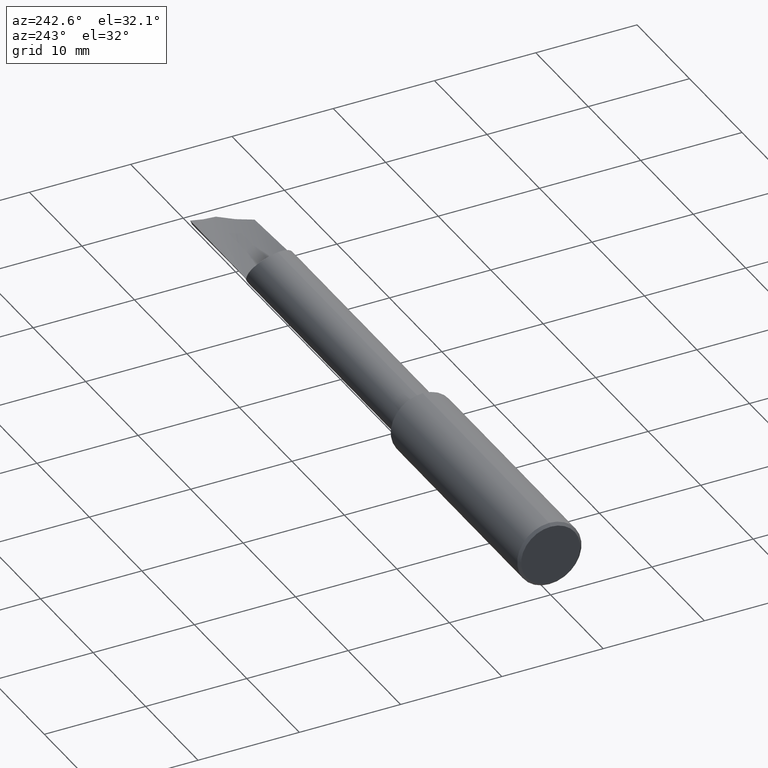
[diagram: clean part render]
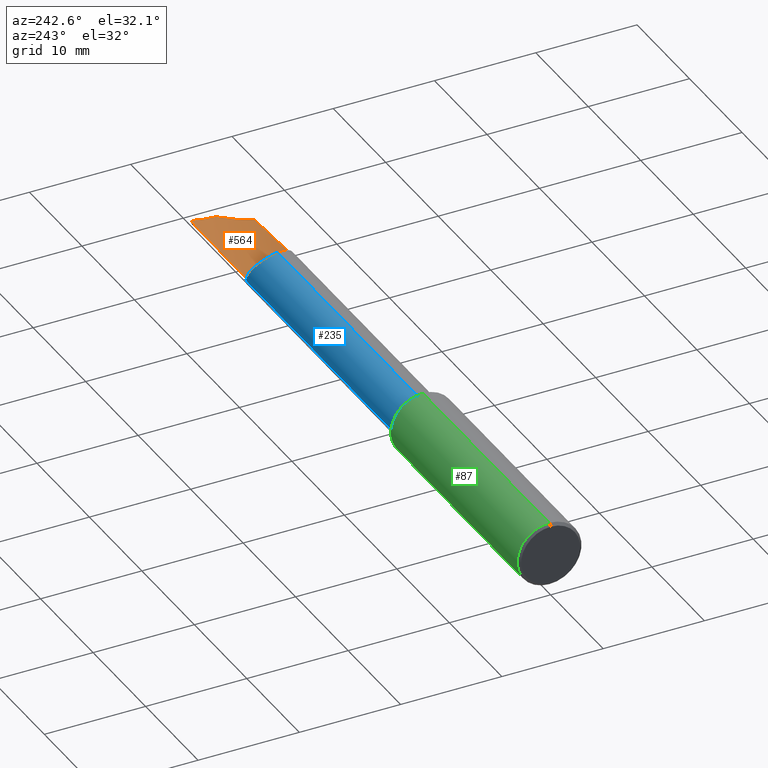
[diagram: same view with three faces highlighted in distinct colors, each labeled with its STEP entity id]
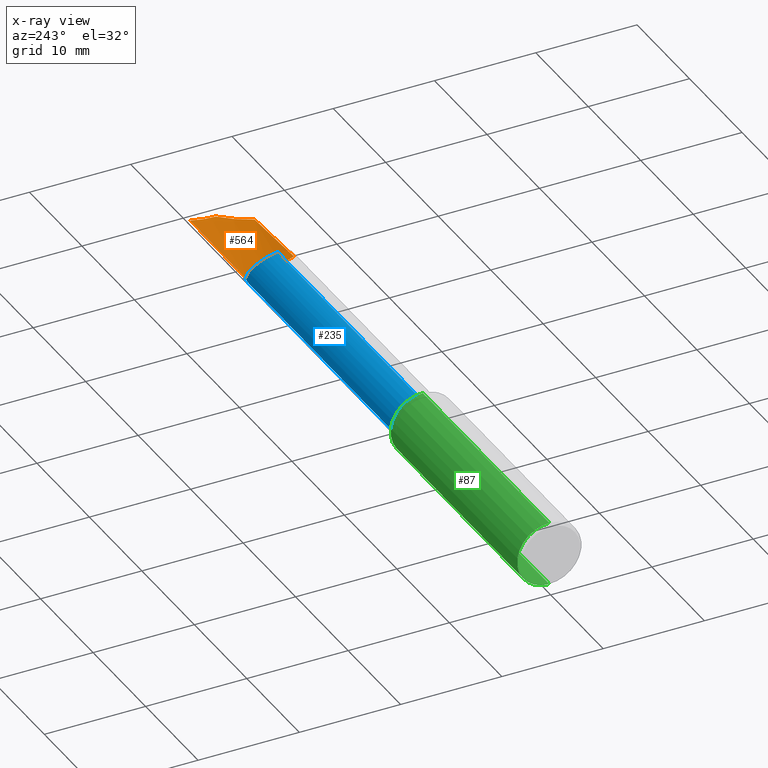
[diagram: x-ray of the same camera — body ghosted, the three highlighted faces saturated]
A machine part, auxiliary view with three faces highlighted in distinct colors.
The next image is the same camera in x-ray (body ghosted, the three faces saturated) — at least one of them is partly hidden behind the body in this view.
Their STEP definitions:

[orange] entity #564 — the highlighted face is a freeform B-spline surface patch.
#42 = CARTESIAN_POINT ( 'NONE',  ( 2.500000000000000000, 0.1748499999999998666, 0.02036606132864511934 ) ) ;
#52 = CARTESIAN_POINT ( 'NONE',  ( 2.500000000000000000, 0.1052499999999999686, 0.000000000000000000 ) ) ;
#54 = VERTEX_POINT ( 'NONE', #687 ) ;
#58 = EDGE_CURVE ( 'NONE', #183, #342, #763, .T. ) ;
#60 = CARTESIAN_POINT ( 'NONE',  ( 2.246698480951583754, 0.09595842451396570383, -0.01731511377960634826 ) ) ;
#63 =( BOUNDED_CURVE ( )  B_SPLINE_CURVE ( 3, ( #698, #520, #208, #743 ),
 .UNSPECIFIED., .F., .F. ) 
 B_SPLINE_CURVE_WITH_KNOTS ( ( 4, 4 ),
 ( 0.005175778614820833803, 0.005191721417056123847 ),
 .UNSPECIFIED. ) 
 CURVE ( )  GEOMETRIC_REPRESENTATION_ITEM ( )  RATIONAL_B_SPLINE_CURVE ( ( 0.9740275819911479172, 0.9740656182505580407, 0.9741037836849223419, 0.9741420782942408207 ) ) 
 REPRESENTATION_ITEM ( '' )  );
#73 = CARTESIAN_POINT ( 'NONE',  ( 2.115831856367702546, 0.08921906441239113583, -0.02441856689959865864 ) ) ;
#74 = B_SPLINE_CURVE_WITH_KNOTS ( 'NONE', 3,
 ( #215, #446, #733, #621 ),
 .UNSPECIFIED., .F., .F.,
 ( 4, 4 ),
 ( 7.967431483338822441E-05, 0.003654915943233843362 ),
 .UNSPECIFIED. ) ;
#83 = CARTESIAN_POINT ( 'NONE',  ( 2.101985182368761418, -0.06232069977107370512, 0.007196703789060768588 ) ) ;
#94 = CARTESIAN_POINT ( 'NONE',  ( 1.812666666666668203, 0.1692320603815770930, -0.05466611626099807802 ) ) ;
#102 = FACE_OUTER_BOUND ( 'NONE', #476, .T. ) ;
#113 = CARTESIAN_POINT ( 'NONE',  ( 2.500000000000000000, 0.1052499999999999686, 0.000000000000000000 ) ) ;
#128 = CARTESIAN_POINT ( 'NONE',  ( 2.111665809954994089, 0.08915496014083668097, -0.02465041748704996025 ) ) ;
#135 = ORIENTED_EDGE ( 'NONE', *, *, #670, .F. ) ;
#146 = ORIENTED_EDGE ( 'NONE', *, *, #58, .T. ) ;
#151 = CARTESIAN_POINT ( 'NONE',  ( 2.500000000000000444, 0.06084440686735265169, -0.02218851683438133673 ) ) ;
#154 = CARTESIAN_POINT ( 'NONE',  ( 2.107791904823271611, 0.02744776930478221716, -0.01842625771583338706 ) ) ;
#183 = VERTEX_POINT ( 'NONE', #771 ) ;
#184 = EDGE_CURVE ( 'NONE', #516, #363, #248, .T. ) ;
#195 = EDGE_CURVE ( 'NONE', #516, #54, #599, .T. ) ;
#208 = CARTESIAN_POINT ( 'NONE',  ( 2.120000000000000551, 0.08970010041975085002, -0.02420745754555480439 ) ) ;
#215 = CARTESIAN_POINT ( 'NONE',  ( 2.497767342160548854, 0.006563304598762005095, -0.01116899279488216441 ) ) ;
#217 = CARTESIAN_POINT ( 'NONE',  ( 2.270888888888889845, 0.05765417977062659016, -0.03093662185290534800 ) ) ;
#221 = CARTESIAN_POINT ( 'NONE',  ( 2.270888888888888957, -0.1719218024467703554, 0.04550569603366619309 ) ) ;
#223 = CARTESIAN_POINT ( 'NONE',  ( 2.041777777777778358, -0.06463100845323596633, -0.004147875681276347488 ) ) ;
#248 = B_SPLINE_CURVE_WITH_KNOTS ( 'NONE', 3,
 ( #113, #716, #60, #304 ),
 .UNSPECIFIED., .F., .F.,
 ( 4, 4 ),
 ( 2.686746494871500227E-21, 0.009679675726453004087 ),
 .UNSPECIFIED. ) ;
#278 = VERTEX_POINT ( 'NONE', #433 ) ;
#288 = CARTESIAN_POINT ( 'NONE',  ( 2.041777777777778802, -0.1620295639055862602, 0.06880203030876089199 ) ) ;
#304 = CARTESIAN_POINT ( 'NONE',  ( 2.120000000000000107, 0.08990917335082526662, -0.02421779605015241671 ) ) ;
#308 = EDGE_CURVE ( 'NONE', #54, #278, #74, .T. ) ;
#318 = ORIENTED_EDGE ( 'NONE', *, *, #367, .F. ) ;
#326 = CARTESIAN_POINT ( 'NONE',  ( 2.099985204774059699, -0.09024474448373197288, 0.02030113526544596175 ) ) ;
#340 = CARTESIAN_POINT ( 'NONE',  ( 2.500000000000000000, 0.1052499999999999686, 0.000000000000000000 ) ) ;
#341 = CARTESIAN_POINT ( 'NONE',  ( 2.120000000000000107, 0.08928196195395607382, -0.02418638603949730542 ) ) ;
#342 = VERTEX_POINT ( 'NONE', #394 ) ;
#346 = VERTEX_POINT ( 'NONE', #341 ) ;
#350 = CARTESIAN_POINT ( 'NONE',  ( 1.812666666666668203, -0.1521373253644021650, 0.09209836458385559088 ) ) ;
#354 = CARTESIAN_POINT ( 'NONE',  ( 1.812666666666668869, 0.04660292681476783244, -0.04592653077460544936 ) ) ;
#361 = CARTESIAN_POINT ( 'NONE',  ( 2.498105852030231944, 0.03982996995073791180, -0.01077648217461519772 ) ) ;
#363 = VERTEX_POINT ( 'NONE', #509 ) ;
#367 = EDGE_CURVE ( 'NONE', #346, #363, #63, .T. ) ;
#387 = CARTESIAN_POINT ( 'NONE',  ( 2.103920395128665799, -0.03289320846274075560, -0.003308102619573082773 ) ) ;
#394 = CARTESIAN_POINT ( 'NONE',  ( 2.099985204774059699, -0.09024474448373197288, 0.02030113526544596175 ) ) ;
#400 = ORIENTED_EDGE ( 'NONE', *, *, #184, .T. ) ;
#402 = CARTESIAN_POINT ( 'NONE',  ( 1.583555555555557381, 0.03918955435071098253, -0.05156113804157395203 ) ) ;
#414 = CARTESIAN_POINT ( 'NONE',  ( 2.500000000000000000, -0.1748499999999999499, 0.02036606132864511934 ) ) ;
#433 = CARTESIAN_POINT ( 'NONE',  ( 2.398761991375082836, -0.09244204618670309737, 0.003273850457099852784 ) ) ;
#444 = CARTESIAN_POINT ( 'NONE',  ( 2.120000000000000107, 0.08928196195395607382, -0.02418638603949730542 ) ) ;
#446 = CARTESIAN_POINT ( 'NONE',  ( 2.464380513559167429, -0.02682352400261905565, -0.01169628508488581263 ) ) ;
#463 = CARTESIAN_POINT ( 'NONE',  ( 2.111665809954994089, 0.08915496014083668097, -0.02465041748704996025 ) ) ;
#475 = CARTESIAN_POINT ( 'NONE',  ( 1.812666666666668869, -0.06522738294239313617, 0.005144660453304620955 ) ) ;
#476 = EDGE_LOOP ( 'NONE', ( #613, #400, #318, #608, #146, #135, #754 ) ) ;
#480 = CARTESIAN_POINT ( 'NONE',  ( 2.498847675109613586, 0.07274798056255332712, -0.007074594563097092413 ) ) ;
#509 = CARTESIAN_POINT ( 'NONE',  ( 2.120000000000000107, 0.08990917335082526662, -0.02421779605015241671 ) ) ;
#513 = CARTESIAN_POINT ( 'NONE',  ( 1.583555555555557826, 0.1581039042606014744, -0.07739802588953197116 ) ) ;
#516 = VERTEX_POINT ( 'NONE', #340 ) ;
#520 = CARTESIAN_POINT ( 'NONE',  ( 2.120000000000000551, 0.08949102992630660058, -0.02419698754576702499 ) ) ;
#521 =( BOUNDED_CURVE ( )  B_SPLINE_CURVE ( 2, ( #128, #73, #444 ),
 .UNSPECIFIED., .F., .F. ) 
 B_SPLINE_CURVE_WITH_KNOTS ( ( 3, 3 ),
 ( 0.5767193966733731303, 0.5858306181482758612 ),
 .UNSPECIFIED. ) 
 CURVE ( )  GEOMETRIC_REPRESENTATION_ITEM ( )  RATIONAL_B_SPLINE_CURVE ( ( 0.9742721459605733214, 0.9741465623362282056, 0.9740275819911484723 ) ) 
 REPRESENTATION_ITEM ( '' )  );
#525 = CARTESIAN_POINT ( 'NONE',  ( 2.500000000000000444, -0.06084440686735272802, -0.02218851683438132980 ) ) ;
#564 = ADVANCED_FACE ( 'NONE', ( #102 ), #682, .T. ) ;
#588 = CARTESIAN_POINT ( 'NONE',  ( 2.041777777777778358, 0.05212855329269719395, -0.03843157631375539868 ) ) ;
#593 = CARTESIAN_POINT ( 'NONE',  ( 1.583555555555557826, -0.1360824561704624680, 0.1116640679746904036 ) ) ;
#599 = B_SPLINE_CURVE_WITH_KNOTS ( 'NONE', 3,
 ( #52, #480, #361, #602 ),
 .UNSPECIFIED., .F., .F.,
 ( 4, 4 ),
 ( 8.292191760819323082E-18, 0.002523290404141618690 ),
 .UNSPECIFIED. ) ;
#601 = CARTESIAN_POINT ( 'NONE',  ( 2.099985204774059699, -0.09024474448373197288, 0.02030113526544596175 ) ) ;
#602 = CARTESIAN_POINT ( 'NONE',  ( 2.497767342160548854, 0.006563304598762005095, -0.01116899279488216441 ) ) ;
#608 = ORIENTED_EDGE ( 'NONE', *, *, #766, .F. ) ;
#613 = ORIENTED_EDGE ( 'NONE', *, *, #195, .F. ) ;
#621 = CARTESIAN_POINT ( 'NONE',  ( 2.398761991375082836, -0.09244204618670309737, 0.003273850457099852784 ) ) ;
#640 = CARTESIAN_POINT ( 'NONE',  ( 2.041777777777778802, 0.1735051289674032771, -0.02971984481868702316 ) ) ;
#655 = CARTESIAN_POINT ( 'NONE',  ( 2.398761991375082836, -0.09244204618670309737, 0.003273850457099852784 ) ) ;
#670 = EDGE_CURVE ( 'NONE', #278, #342, #710, .T. ) ;
#682 =( BOUNDED_SURFACE ( )  B_SPLINE_SURFACE ( 3, 2, ( 
 ( #414, #221, #288, #350, #593 ),
 ( #525, #697, #223, #475, #760 ),
 ( #151, #217, #588, #354, #402 ),
 ( #42, #700, #640, #94, #513 ) ),
 .UNSPECIFIED., .F., .F., .T. ) 
 B_SPLINE_SURFACE_WITH_KNOTS ( ( 4, 4 ),
 ( 3, 2, 3 ),
 ( 0.000000000000000000, 1.000000000000000000 ),
 ( 0.000000000000000000, 0.5000000000000000000, 1.000000000000000000 ),
 .UNSPECIFIED. ) 
 GEOMETRIC_REPRESENTATION_ITEM ( )  RATIONAL_B_SPLINE_SURFACE ( (
 ( 1.000000000000000000, 0.9898214418809326842, 1.000000000000000000, 0.9898214418809326842, 1.000000000000000000),
 ( 0.9579078231528690424, 0.9481577027021983461, 0.9579078231528690424, 0.9481577027021983461, 0.9579078231528690424),
 ( 0.9579078231528690424, 0.9481577027021983461, 0.9579078231528690424, 0.9481577027021983461, 0.9579078231528690424),
 ( 1.000000000000000000, 0.9898214418809326842, 1.000000000000000000, 0.9898214418809326842, 1.000000000000000000) ) ) 
 REPRESENTATION_ITEM ( '' )  SURFACE ( )  );
#687 = CARTESIAN_POINT ( 'NONE',  ( 2.497767342160548854, 0.006563304598762005095, -0.01116899279488216441 ) ) ;
#697 = CARTESIAN_POINT ( 'NONE',  ( 2.270888888888889845, -0.06403463396407883812, -0.01344041181585731853 ) ) ;
#698 = CARTESIAN_POINT ( 'NONE',  ( 2.120000000000000107, 0.08928196195395607382, -0.02418638603949730542 ) ) ;
#699 = CARTESIAN_POINT ( 'NONE',  ( 2.109728201757892663, 0.05835192853738419699, -0.02303726912454244491 ) ) ;
#700 = CARTESIAN_POINT ( 'NONE',  ( 2.270888888888888957, 0.1777781975532294612, -0.004773573376375951811 ) ) ;
#709 = CARTESIAN_POINT ( 'NONE',  ( 2.249186691865718846, -0.09213690762715869009, 0.01188989238826950595 ) ) ;
#710 =( BOUNDED_CURVE ( )  B_SPLINE_CURVE ( 2, ( #655, #709, #601 ),
 .UNSPECIFIED., .F., .F. ) 
 B_SPLINE_CURVE_WITH_KNOTS ( ( 3, 3 ),
 ( 0.1109587072986247119, 0.4360622139891842663 ),
 .UNSPECIFIED. ) 
 CURVE ( )  GEOMETRIC_REPRESENTATION_ITEM ( )  RATIONAL_B_SPLINE_CURVE ( ( 0.9734215292658962015, 0.9698259248218300543, 0.9746374891455963363 ) ) 
 REPRESENTATION_ITEM ( '' )  );
#716 = CARTESIAN_POINT ( 'NONE',  ( 2.373370140592598876, 0.1012041265267809576, -0.009235010046400874556 ) ) ;
#733 = CARTESIAN_POINT ( 'NONE',  ( 2.431375663624378181, -0.05982837393740856463, -0.006924542088340161251 ) ) ;
#743 = CARTESIAN_POINT ( 'NONE',  ( 2.120000000000000107, 0.08990917335082526662, -0.02421779605015241324 ) ) ;
#754 = ORIENTED_EDGE ( 'NONE', *, *, #308, .F. ) ;
#760 = CARTESIAN_POINT ( 'NONE',  ( 1.583555555555557381, -0.06318159010964548294, 0.01422880169115912398 ) ) ;
#763 = B_SPLINE_CURVE_WITH_KNOTS ( 'NONE', 3,
 ( #463, #699, #154, #387, #83, #326 ),
 .UNSPECIFIED., .F., .F.,
 ( 4, 2, 4 ),
 ( 0.000000000000000000, 0.5000000000000000000, 1.000000000000000000 ),
 .UNSPECIFIED. ) ;
#766 = EDGE_CURVE ( 'NONE', #183, #346, #521, .T. ) ;
#771 = CARTESIAN_POINT ( 'NONE',  ( 2.111665809954994089, 0.08915496014083668097, -0.02465041748704996025 ) ) ;

[blue] entity #235 — the highlighted cylindrical surface (edge-blend (fillet) strip) has radius 2.3495 mm, axis along (-1, -0, -0).
#1 = CARTESIAN_POINT ( 'NONE',  ( 2.047827916880122334, 0.0005448074884509098359, 0.09249879614009953732 ) ) ;
#7 = CARTESIAN_POINT ( 'NONE',  ( 2.073468108956049605, 0.08550618690932580701, 0.03552333859736302862 ) ) ;
#13 = EDGE_LOOP ( 'NONE', ( #356, #539, #524, #31, #689, #430, #186, #542, #419 ) ) ;
#16 = CARTESIAN_POINT ( 'NONE',  ( 2.076286271816419227, 0.08730198741611246149, 0.03105794626334639624 ) ) ;
#19 = EDGE_CURVE ( 'NONE', #344, #624, #392, .T. ) ;
#25 = CARTESIAN_POINT ( 'NONE',  ( 2.054472730122976376, 0.06293394240340167978, 0.06779179277510309631 ) ) ;
#31 = ORIENTED_EDGE ( 'NONE', *, *, #503, .F. ) ;
#37 = DIRECTION ( 'NONE',  ( 0.000000000000000000, 0.000000000000000000, 1.000000000000000000 ) ) ;
#46 = AXIS2_PLACEMENT_3D ( 'NONE', #412, #752, #37 ) ;
#55 = CYLINDRICAL_SURFACE ( 'NONE', #491, 0.09249999999999999889 ) ;
#73 = CARTESIAN_POINT ( 'NONE',  ( 2.115831856367702546, 0.08921906441239113583, -0.02441856689959865864 ) ) ;
#76 = CARTESIAN_POINT ( 'NONE',  ( 2.070390417637880009, 0.08316591038031106997, 0.04049630990281855025 ) ) ;
#95 = CARTESIAN_POINT ( 'NONE',  ( 2.046359999999999957, 0.01283752039381836144, 0.09160484741616187199 ) ) ;
#111 = EDGE_CURVE ( 'NONE', #321, #366, #199, .T. ) ;
#119 = CIRCLE ( 'NONE', #569, 0.09249999999999999889 ) ;
#121 = DIRECTION ( 'NONE',  ( 0.000000000000000000, 0.000000000000000000, 1.000000000000000000 ) ) ;
#122 = CARTESIAN_POINT ( 'NONE',  ( 0.9838951354882120581, 0.000000000000000000, 0.000000000000000000 ) ) ;
#128 = CARTESIAN_POINT ( 'NONE',  ( 2.111665809954994089, 0.08915496014083668097, -0.02465041748704996025 ) ) ;
#130 = CARTESIAN_POINT ( 'NONE',  ( 2.056689114071337254, 0.06734694849162307928, 0.06362724162322348775 ) ) ;
#133 = CARTESIAN_POINT ( 'NONE',  ( 2.050684075178326626, 0.05377232911390823766, 0.07533086458502093186 ) ) ;
#134 = CARTESIAN_POINT ( 'NONE',  ( 0.9838951354882120581, 0.000000000000000000, 0.09249999999999999889 ) ) ;
#147 = CARTESIAN_POINT ( 'NONE',  ( 2.110129382589837288, 0.08982576072408679502, -0.02222601275359146686 ) ) ;
#150 = EDGE_CURVE ( 'NONE', #395, #344, #119, .T. ) ;
#153 = CARTESIAN_POINT ( 'NONE',  ( 2.083067939091489684, 0.09028758523319836693, 0.02034379597425600358 ) ) ;
#161 = LINE ( 'NONE', #585, #427 ) ;
#165 = CARTESIAN_POINT ( 'NONE',  ( 2.120000000000000107, 0.000000000000000000, 0.000000000000000000 ) ) ;
#168 = CARTESIAN_POINT ( 'NONE',  ( 2.047909686212890712, -1.554536630872900275E-06, 0.09251412615423500185 ) ) ;
#171 = CARTESIAN_POINT ( 'NONE',  ( 2.046359999999999957, 0.03186954430192543569, 0.08683652541406530756 ) ) ;
#176 = CARTESIAN_POINT ( 'NONE',  ( 2.066937143561800028, 0.08018521494668531813, 0.04613968370157726928 ) ) ;
#183 = VERTEX_POINT ( 'NONE', #771 ) ;
#186 = ORIENTED_EDGE ( 'NONE', *, *, #332, .T. ) ;
#187 = CARTESIAN_POINT ( 'NONE',  ( 2.052825325469445961, 0.05937367452498090031, 0.07096069019223755214 ) ) ;
#199 = B_SPLINE_CURVE_WITH_KNOTS ( 'NONE', 3,
 ( #168, #595, #1, #646, #299, #762, #477, #233, #544 ),
 .UNSPECIFIED., .F., .F.,
 ( 4, 2, 1, 1, 1, 4 ),
 ( 0.9130828784941764642, 0.9185151985882901160, 0.9239475186824037678, 0.9348121588706318486, 0.9565414392470881211, 1.000000000000000000 ),
 .UNSPECIFIED. ) ;
#218 = CARTESIAN_POINT ( 'NONE',  ( 2.085945122272987007, 0.09115187329204574307, 0.01580990246085937218 ) ) ;
#233 = CARTESIAN_POINT ( 'NONE',  ( 2.046522920783742983, 0.01074722021861904304, 0.09189779192344127434 ) ) ;
#235 = ADVANCED_FACE ( 'NONE', ( #768 ), #55, .T. ) ;
#244 = CARTESIAN_POINT ( 'NONE',  ( 2.081277077143194543, 0.08959285356399214473, 0.02317037652879311987 ) ) ;
#249 = CARTESIAN_POINT ( 'NONE',  ( 2.046835084042316399, 0.03761252682148737841, 0.08472884904255002791 ) ) ;
#254 = VERTEX_POINT ( 'NONE', #496 ) ;
#259 = CARTESIAN_POINT ( 'NONE',  ( 2.063118217034376922, 0.07621158154040955091, 0.05250172275426923801 ) ) ;
#264 = CARTESIAN_POINT ( 'NONE',  ( 2.107649412634559294, 0.09082427280002687564, -0.01835262024604034786 ) ) ;
#266 = VERTEX_POINT ( 'NONE', #134 ) ;
#293 = CARTESIAN_POINT ( 'NONE',  ( 2.046359999999999069, 0.02548420369320165274, 0.08827803738801967559 ) ) ;
#296 = CARTESIAN_POINT ( 'NONE',  ( 0.9838951354882120581, 1.132798289211301828E-17, -0.09249999999999999889 ) ) ;
#299 = CARTESIAN_POINT ( 'NONE',  ( 2.047613336586801225, 0.001904979390057215047, 0.09248317671571612553 ) ) ;
#305 = DIRECTION ( 'NONE',  ( 0.000000000000000000, 0.000000000000000000, 1.000000000000000000 ) ) ;
#315 = CARTESIAN_POINT ( 'NONE',  ( 2.047909686212890712, -1.554536630872900275E-06, 0.09251412615423500185 ) ) ;
#321 = VERTEX_POINT ( 'NONE', #315 ) ;
#323 = CARTESIAN_POINT ( 'NONE',  ( 2.052082497096775704, 0.05752794145831838235, 0.07245187427481500353 ) ) ;
#327 = CARTESIAN_POINT ( 'NONE',  ( 2.090581533027239036, 0.09210676330602081407, 0.008522862028076474278 ) ) ;
#332 = EDGE_CURVE ( 'NONE', #254, #183, #498, .T. ) ;
#341 = CARTESIAN_POINT ( 'NONE',  ( 2.120000000000000107, 0.08928196195395607382, -0.02418638603949730542 ) ) ;
#344 = VERTEX_POINT ( 'NONE', #589 ) ;
#346 = VERTEX_POINT ( 'NONE', #341 ) ;
#356 = ORIENTED_EDGE ( 'NONE', *, *, #150, .T. ) ;
#362 = CARTESIAN_POINT ( 'NONE',  ( 2.046359999999999069, 0.01913645612721456488, 0.08986829457070735772 ) ) ;
#366 = VERTEX_POINT ( 'NONE', #95 ) ;
#378 = B_SPLINE_CURVE_WITH_KNOTS ( 'NONE', 3,
 ( #171, #293, #362, #537 ),
 .UNSPECIFIED., .F., .F.,
 ( 4, 4 ),
 ( 0.000000000000000000, 1.000000000000000000 ),
 .UNSPECIFIED. ) ;
#379 = CARTESIAN_POINT ( 'NONE',  ( 2.068150813712690717, 0.08131382946355224239, 0.04414186749009448019 ) ) ;
#392 = LINE ( 'NONE', #577, #643 ) ;
#395 = VERTEX_POINT ( 'NONE', #694 ) ;
#396 = DIRECTION ( 'NONE',  ( -1.000000000000000000, -0.000000000000000000, -0.000000000000000000 ) ) ;
#404 = CARTESIAN_POINT ( 'NONE',  ( 2.086935998376662216, 0.09141023289801472607, 0.01424971767703395870 ) ) ;
#412 = CARTESIAN_POINT ( 'NONE',  ( 2.120000000000000107, 0.000000000000000000, 0.000000000000000000 ) ) ;
#419 = ORIENTED_EDGE ( 'NONE', *, *, #548, .T. ) ;
#427 = VECTOR ( 'NONE', #650, 39.37007874015748143 ) ;
#430 = ORIENTED_EDGE ( 'NONE', *, *, #598, .F. ) ;
#432 = CARTESIAN_POINT ( 'NONE',  ( 2.059019005238191813, 0.07106157771718758787, 0.05949828892136887343 ) ) ;
#444 = CARTESIAN_POINT ( 'NONE',  ( 2.120000000000000107, 0.08928196195395607382, -0.02418638603949730542 ) ) ;
#459 = CARTESIAN_POINT ( 'NONE',  ( 2.089248984098266870, 0.09189570065554275580, 0.01061359712825269905 ) ) ;
#461 = CARTESIAN_POINT ( 'NONE',  ( 2.096433888643092214, 0.09287403088557119601, -0.0006477885304175681020 ) ) ;
#474 = DIRECTION ( 'NONE',  ( -1.000000000000000000, -0.000000000000000000, -0.000000000000000000 ) ) ;
#477 = CARTESIAN_POINT ( 'NONE',  ( 2.046834931757196774, 0.007569663407491452820, 0.09223360116256829055 ) ) ;
#487 = DIRECTION ( 'NONE',  ( -1.000000000000000000, -0.000000000000000000, -0.000000000000000000 ) ) ;
#491 = AXIS2_PLACEMENT_3D ( 'NONE', #723, #676, #121 ) ;
#495 = CARTESIAN_POINT ( 'NONE',  ( 2.049868107001878936, 0.05118305480786037448, 0.07711223675426005786 ) ) ;
#496 = CARTESIAN_POINT ( 'NONE',  ( 2.046359999999999957, 0.03186954430192543569, 0.08683652541406530756 ) ) ;
#498 = B_SPLINE_CURVE_WITH_KNOTS ( 'NONE', 3,
 ( #562, #249, #679, #495, #133, #323, #187, #730, #568, #25, #675, #130, #432, #259, #504, #176, #379, #617, #76, #558, #667, #551, #7, #16, #244, #153, #218, #404, #526, #459, #515, #327, #642, #586, #461, #748, #264, #147, #580 ),
 .UNSPECIFIED., .F., .F.,
 ( 4, 2, 2, 1, 1, 2, 2, 2, 2, 1, 1, 1, 2, 2, 2, 2, 2, 1, 1, 2, 2, 2, 4 ),
 ( 0.000000000000000000, 0.1249999999999653888, 0.1874999999999475142, 0.2187499999999386324, 0.2343749999999341360, 0.2421874999999318878, 0.2499999999999296396, 0.3749999999998804290, 0.4374999999998557820, 0.4687499999998435141, 0.4843749999998374078, 0.4921874999998332445, 0.4960937499998323008, 0.4999999999998314126, 0.6249999999998410161, 0.6874999999998472333, 0.7187499999998503419, 0.7343749999998518962, 0.7421874999998526734, 0.7460937499998541167, 0.7499999999998555600, 0.8749999999999278355, 1.000000000000000000 ),
 .UNSPECIFIED. ) ;
#503 = EDGE_CURVE ( 'NONE', #321, #266, #161, .T. ) ;
#504 = CARTESIAN_POINT ( 'NONE',  ( 2.064585350140756059, 0.07785742368321742213, 0.05003626694631448796 ) ) ;
#515 = CARTESIAN_POINT ( 'NONE',  ( 2.090178636555234171, 0.09204756222701837576, 0.009154675718668237039 ) ) ;
#521 =( BOUNDED_CURVE ( )  B_SPLINE_CURVE ( 2, ( #128, #73, #444 ),
 .UNSPECIFIED., .F., .F. ) 
 B_SPLINE_CURVE_WITH_KNOTS ( ( 3, 3 ),
 ( 0.5767193966733731303, 0.5858306181482758612 ),
 .UNSPECIFIED. ) 
 CURVE ( )  GEOMETRIC_REPRESENTATION_ITEM ( )  RATIONAL_B_SPLINE_CURVE ( ( 0.9742721459605733214, 0.9741465623362282056, 0.9740275819911484723 ) ) 
 REPRESENTATION_ITEM ( '' )  );
#524 = ORIENTED_EDGE ( 'NONE', *, *, #604, .F. ) ;
#526 = CARTESIAN_POINT ( 'NONE',  ( 2.088470035096937849, 0.09174301055325211063, 0.01183760101169105926 ) ) ;
#537 = CARTESIAN_POINT ( 'NONE',  ( 2.046359999999999957, 0.01283752039381836144, 0.09160484741616187199 ) ) ;
#539 = ORIENTED_EDGE ( 'NONE', *, *, #19, .T. ) ;
#542 = ORIENTED_EDGE ( 'NONE', *, *, #766, .T. ) ;
#544 = CARTESIAN_POINT ( 'NONE',  ( 2.046359999999999957, 0.01283752039381836144, 0.09160484741616187199 ) ) ;
#548 = EDGE_CURVE ( 'NONE', #346, #395, #688, .T. ) ;
#551 = CARTESIAN_POINT ( 'NONE',  ( 2.071086826718692375, 0.08370366893413648535, 0.03936956152814576754 ) ) ;
#558 = CARTESIAN_POINT ( 'NONE',  ( 2.070718623995844165, 0.08342116242586343489, 0.03996496425778538891 ) ) ;
#562 = CARTESIAN_POINT ( 'NONE',  ( 2.046359999999999957, 0.03186954430192543569, 0.08683652541406530756 ) ) ;
#568 = CARTESIAN_POINT ( 'NONE',  ( 2.054188772820882747, 0.06234848831482234927, 0.06833062475167092642 ) ) ;
#569 = AXIS2_PLACEMENT_3D ( 'NONE', #165, #474, #600 ) ;
#577 = CARTESIAN_POINT ( 'NONE',  ( 0.000000000000000000, 1.132798289211301828E-17, -0.09249999999999999889 ) ) ;
#580 = CARTESIAN_POINT ( 'NONE',  ( 2.111665809954994089, 0.08915496014083668097, -0.02465041748704996025 ) ) ;
#585 = CARTESIAN_POINT ( 'NONE',  ( 0.000000000000000000, 0.000000000000000000, 0.09249999999999999889 ) ) ;
#586 = CARTESIAN_POINT ( 'NONE',  ( 2.090956218076420292, 0.09215935361655598623, 0.007935468564174451289 ) ) ;
#589 = CARTESIAN_POINT ( 'NONE',  ( 2.120000000000000107, 1.132798289211301828E-17, -0.09249999999999999889 ) ) ;
#595 = CARTESIAN_POINT ( 'NONE',  ( 2.047880505145097452, 0.0002213167310058151180, 0.09250000089681748028 ) ) ;
#598 = EDGE_CURVE ( 'NONE', #254, #366, #378, .T. ) ;
#600 = DIRECTION ( 'NONE',  ( 0.000000000000000000, 0.000000000000000000, -1.000000000000000000 ) ) ;
#604 = EDGE_CURVE ( 'NONE', #266, #624, #663, .T. ) ;
#617 = CARTESIAN_POINT ( 'NONE',  ( 2.069632865742709438, 0.08256084544845203321, 0.04172559821949120562 ) ) ;
#624 = VERTEX_POINT ( 'NONE', #296 ) ;
#642 = CARTESIAN_POINT ( 'NONE',  ( 2.090851124895340973, 0.09214489540535990286, 0.008100202133049067346 ) ) ;
#643 = VECTOR ( 'NONE', #396, 39.37007874015748143 ) ;
#646 = CARTESIAN_POINT ( 'NONE',  ( 2.047741136250033733, 0.001089221985225309781, 0.09249398736152562861 ) ) ;
#650 = DIRECTION ( 'NONE',  ( -1.000000000000000000, -0.000000000000000000, -0.000000000000000000 ) ) ;
#663 = CIRCLE ( 'NONE', #722, 0.09249999999999999889 ) ;
#667 = CARTESIAN_POINT ( 'NONE',  ( 2.070938215181162168, 0.08359041568984150461, 0.03960973508378786562 ) ) ;
#675 = CARTESIAN_POINT ( 'NONE',  ( 2.054641703697401400, 0.06327518632099957130, 0.06747302676158670187 ) ) ;
#676 = DIRECTION ( 'NONE',  ( -1.000000000000000000, -0.000000000000000000, -0.000000000000000000 ) ) ;
#679 = CARTESIAN_POINT ( 'NONE',  ( 2.047769141780094948, 0.04320709663551680624, 0.08202685796229856885 ) ) ;
#688 = CIRCLE ( 'NONE', #46, 0.09249999999999999889 ) ;
#689 = ORIENTED_EDGE ( 'NONE', *, *, #111, .T. ) ;
#694 = CARTESIAN_POINT ( 'NONE',  ( 2.120000000000000107, 0.08855785515986705492, -0.02671621772414664239 ) ) ;
#722 = AXIS2_PLACEMENT_3D ( 'NONE', #122, #487, #305 ) ;
#723 = CARTESIAN_POINT ( 'NONE',  ( 0.000000000000000000, 0.000000000000000000, 0.000000000000000000 ) ) ;
#730 = CARTESIAN_POINT ( 'NONE',  ( 2.053768289044421991, 0.06146564332930339741, 0.06913270069952680286 ) ) ;
#748 = CARTESIAN_POINT ( 'NONE',  ( 2.100801665661184980, 0.09234974699426072575, -0.007575713144324884921 ) ) ;
#752 = DIRECTION ( 'NONE',  ( -1.000000000000000000, -0.000000000000000000, -0.000000000000000000 ) ) ;
#762 = CARTESIAN_POINT ( 'NONE',  ( 2.047331736345879616, 0.003802142883494294759, 0.09243292659895571695 ) ) ;
#766 = EDGE_CURVE ( 'NONE', #183, #346, #521, .T. ) ;
#768 = FACE_OUTER_BOUND ( 'NONE', #13, .T. ) ;
#771 = CARTESIAN_POINT ( 'NONE',  ( 2.111665809954994089, 0.08915496014083668097, -0.02465041748704996025 ) ) ;

[green] entity #87 — the highlighted cylindrical surface (edge-blend (fillet) strip) has radius 3.1712 mm, axis along (-1, -0, -0).
#3 = CARTESIAN_POINT ( 'NONE',  ( 0.9588951354882120359, 1.528971528735470422E-17, -0.1248500000000000026 ) ) ;
#23 = VECTOR ( 'NONE', #345, 39.37007874015748143 ) ;
#27 = VERTEX_POINT ( 'NONE', #518 ) ;
#36 = FACE_OUTER_BOUND ( 'NONE', #559, .T. ) ;
#47 = CIRCLE ( 'NONE', #431, 0.1248500000000000026 ) ;
#87 = ADVANCED_FACE ( 'NONE', ( #36 ), #207, .T. ) ;
#108 = AXIS2_PLACEMENT_3D ( 'NONE', #458, #273, #211 ) ;
#131 = CARTESIAN_POINT ( 'NONE',  ( 0.000000000000000000, 1.528971528735470422E-17, -0.1248500000000000026 ) ) ;
#156 = CARTESIAN_POINT ( 'NONE',  ( 0.009999999999999993269, 1.528971528735470422E-17, -0.1248500000000000026 ) ) ;
#207 = CYLINDRICAL_SURFACE ( 'NONE', #108, 0.1248500000000000026 ) ;
#211 = DIRECTION ( 'NONE',  ( 0.000000000000000000, 0.000000000000000000, 1.000000000000000000 ) ) ;
#212 = CARTESIAN_POINT ( 'NONE',  ( 0.9588951354882120359, 0.000000000000000000, 0.1248500000000000026 ) ) ;
#214 = ORIENTED_EDGE ( 'NONE', *, *, #610, .F. ) ;
#241 = EDGE_CURVE ( 'NONE', #652, #572, #552, .T. ) ;
#273 = DIRECTION ( 'NONE',  ( -1.000000000000000000, -0.000000000000000000, -0.000000000000000000 ) ) ;
#345 = DIRECTION ( 'NONE',  ( -1.000000000000000000, -0.000000000000000000, -0.000000000000000000 ) ) ;
#359 = EDGE_CURVE ( 'NONE', #27, #572, #47, .T. ) ;
#408 = CARTESIAN_POINT ( 'NONE',  ( 0.009999999999999993269, 0.000000000000000000, 0.000000000000000000 ) ) ;
#421 = CARTESIAN_POINT ( 'NONE',  ( 0.9588951354882120359, 0.000000000000000000, 0.000000000000000000 ) ) ;
#431 = AXIS2_PLACEMENT_3D ( 'NONE', #408, #466, #701 ) ;
#458 = CARTESIAN_POINT ( 'NONE',  ( 0.000000000000000000, 0.000000000000000000, 0.000000000000000000 ) ) ;
#464 = CARTESIAN_POINT ( 'NONE',  ( 0.000000000000000000, 0.000000000000000000, 0.1248500000000000026 ) ) ;
#466 = DIRECTION ( 'NONE',  ( -1.000000000000000000, -0.000000000000000000, -0.000000000000000000 ) ) ;
#481 = DIRECTION ( 'NONE',  ( 0.000000000000000000, 0.000000000000000000, -1.000000000000000000 ) ) ;
#493 = DIRECTION ( 'NONE',  ( -1.000000000000000000, -0.000000000000000000, -0.000000000000000000 ) ) ;
#518 = CARTESIAN_POINT ( 'NONE',  ( 0.009999999999999993269, 0.000000000000000000, 0.1248500000000000026 ) ) ;
#534 = EDGE_CURVE ( 'NONE', #557, #27, #578, .T. ) ;
#547 = DIRECTION ( 'NONE',  ( 1.000000000000000000, 0.000000000000000000, 0.000000000000000000 ) ) ;
#552 = LINE ( 'NONE', #131, #653 ) ;
#557 = VERTEX_POINT ( 'NONE', #212 ) ;
#559 = EDGE_LOOP ( 'NONE', ( #214, #695, #737, #685 ) ) ;
#572 = VERTEX_POINT ( 'NONE', #156 ) ;
#578 = LINE ( 'NONE', #464, #23 ) ;
#610 = EDGE_CURVE ( 'NONE', #652, #557, #770, .T. ) ;
#652 = VERTEX_POINT ( 'NONE', #3 ) ;
#653 = VECTOR ( 'NONE', #493, 39.37007874015748143 ) ;
#685 = ORIENTED_EDGE ( 'NONE', *, *, #534, .F. ) ;
#695 = ORIENTED_EDGE ( 'NONE', *, *, #241, .T. ) ;
#701 = DIRECTION ( 'NONE',  ( 0.000000000000000000, 0.000000000000000000, 1.000000000000000000 ) ) ;
#734 = AXIS2_PLACEMENT_3D ( 'NONE', #421, #547, #481 ) ;
#737 = ORIENTED_EDGE ( 'NONE', *, *, #359, .F. ) ;
#770 = CIRCLE ( 'NONE', #734, 0.1248500000000000026 ) ;